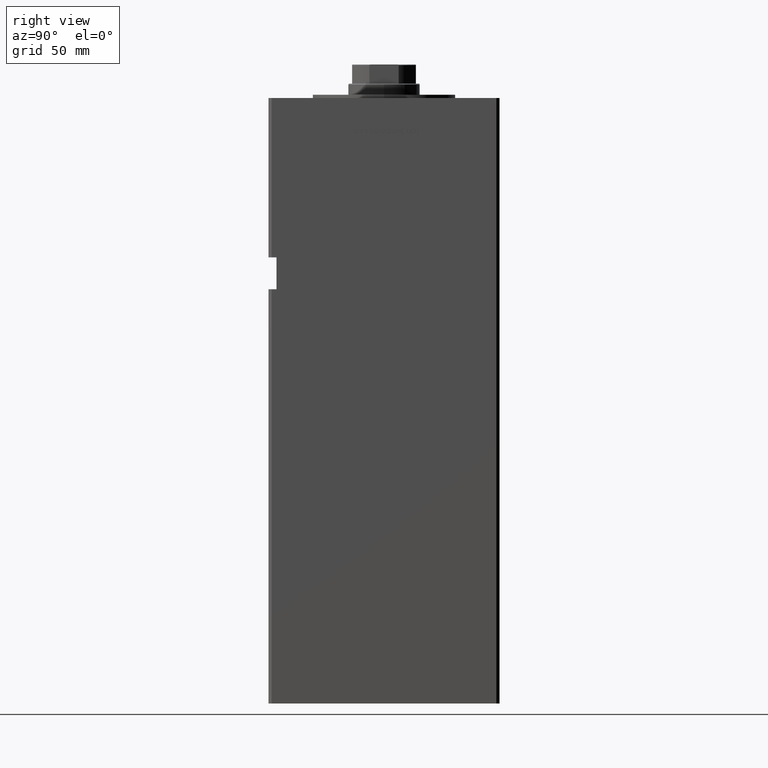
[diagram: clean part render]
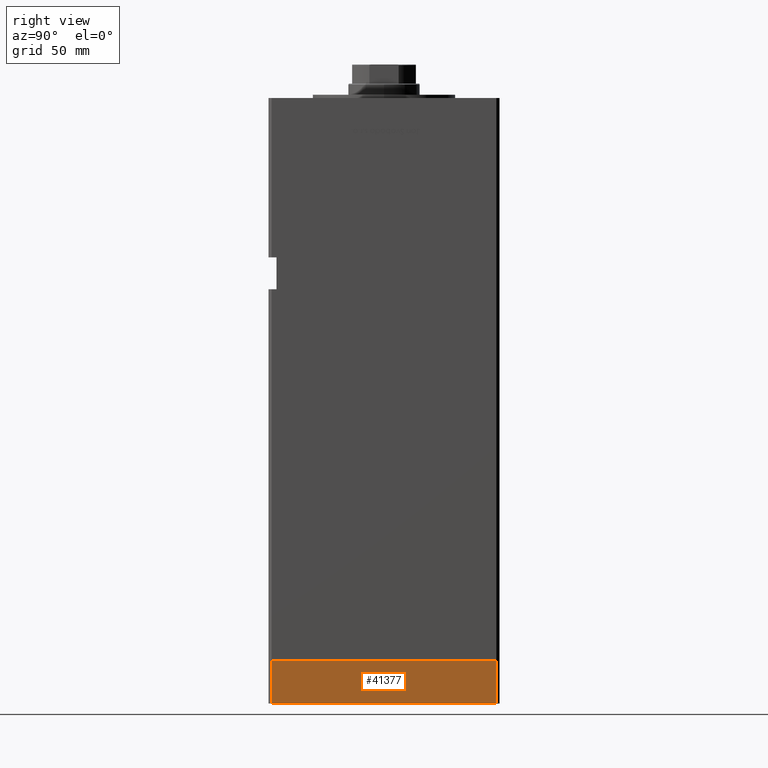
[diagram: same view with one face highlighted and labeled with its STEP entity id]
A machine part, right view. The second image highlights one B-rep face of the part: STEP entity #41377.
In plain terms, the highlighted planar face has unit normal (1, 0, 0).
Its self-contained STEP definition (entity closure, byte-faithful):
#1991 = LINE ( 'NONE', #47087, #45652 ) ;
#2404 = VECTOR ( 'NONE', #43407, 1000.000000000000000 ) ;
#5064 = EDGE_CURVE ( 'NONE', #17469, #22698, #1991, .T. ) ;
#5597 = EDGE_LOOP ( 'NONE', ( #11682, #7331, #27928, #27375 ) ) ;
#6247 = CARTESIAN_POINT ( 'NONE',  ( -85.00000000000001421, 70.49999999999997158, -27.00000000000000000 ) ) ;
#7111 = LINE ( 'NONE', #31551, #2404 ) ;
#7331 = ORIENTED_EDGE ( 'NONE', *, *, #18040, .F. ) ;
#11682 = ORIENTED_EDGE ( 'NONE', *, *, #18903, .F. ) ;
#13409 = VERTEX_POINT ( 'NONE', #36728 ) ;
#13753 = AXIS2_PLACEMENT_3D ( 'NONE', #52625, #52888, #24155 ) ;
#17322 = CARTESIAN_POINT ( 'NONE',  ( -85.00000000000001421, 70.49999999999997158, 0.000000000000000000 ) ) ;
#17469 = VERTEX_POINT ( 'NONE', #42701 ) ;
#18040 = EDGE_CURVE ( 'NONE', #40058, #13409, #43331, .T. ) ;
#18674 = CARTESIAN_POINT ( 'NONE',  ( -85.00000000000001421, 70.49999999999997158, -27.00000000000000000 ) ) ;
#18903 = EDGE_CURVE ( 'NONE', #13409, #22698, #32918, .T. ) ;
#21016 = VECTOR ( 'NONE', #29683, 1000.000000000000000 ) ;
#22698 = VERTEX_POINT ( 'NONE', #46479 ) ;
#22918 = DIRECTION ( 'NONE',  ( 0.000000000000000000, 0.000000000000000000, 1.000000000000000000 ) ) ;
#24155 = DIRECTION ( 'NONE',  ( 0.000000000000000000, 0.000000000000000000, 1.000000000000000000 ) ) ;
#25767 = EDGE_CURVE ( 'NONE', #40058, #17469, #7111, .T. ) ;
#27375 = ORIENTED_EDGE ( 'NONE', *, *, #5064, .T. ) ;
#27928 = ORIENTED_EDGE ( 'NONE', *, *, #25767, .T. ) ;
#29683 = DIRECTION ( 'NONE',  ( 0.000000000000000000, 0.000000000000000000, 1.000000000000000000 ) ) ;
#31551 = CARTESIAN_POINT ( 'NONE',  ( -85.00000000000001421, 70.49999999999997158, -27.00000000000000000 ) ) ;
#32211 = PLANE ( 'NONE',  #13753 ) ;
#32918 = LINE ( 'NONE', #17322, #34799 ) ;
#34799 = VECTOR ( 'NONE', #50103, 1000.000000000000000 ) ;
#36728 = CARTESIAN_POINT ( 'NONE',  ( -85.00000000000001421, 70.49999999999997158, 0.000000000000000000 ) ) ;
#36772 = FACE_OUTER_BOUND ( 'NONE', #5597, .T. ) ;
#40058 = VERTEX_POINT ( 'NONE', #18674 ) ;
#41377 = ADVANCED_FACE ( 'NONE', ( #36772 ), #32211, .T. ) ;
#42701 = CARTESIAN_POINT ( 'NONE',  ( -85.00000000000001421, -70.50000000000000000, -27.00000000000000000 ) ) ;
#43331 = LINE ( 'NONE', #6247, #21016 ) ;
#43407 = DIRECTION ( 'NONE',  ( 0.000000000000000000, -1.000000000000000000, 0.000000000000000000 ) ) ;
#45652 = VECTOR ( 'NONE', #22918, 1000.000000000000000 ) ;
#46479 = CARTESIAN_POINT ( 'NONE',  ( -85.00000000000001421, -70.50000000000000000, 0.000000000000000000 ) ) ;
#47087 = CARTESIAN_POINT ( 'NONE',  ( -85.00000000000001421, -70.50000000000000000, -27.00000000000000000 ) ) ;
#50103 = DIRECTION ( 'NONE',  ( 0.000000000000000000, -1.000000000000000000, 0.000000000000000000 ) ) ;
#52625 = CARTESIAN_POINT ( 'NONE',  ( -85.00000000000001421, 70.49999999999997158, -27.00000000000000000 ) ) ;
#52888 = DIRECTION ( 'NONE',  ( -1.000000000000000000, 0.000000000000000000, 0.000000000000000000 ) ) ;